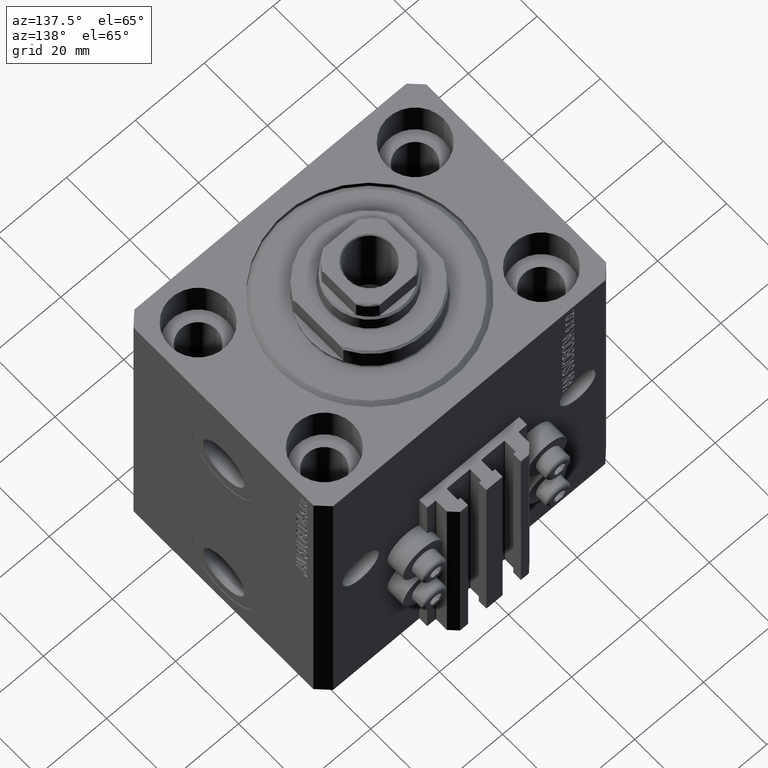
[diagram: clean part render]
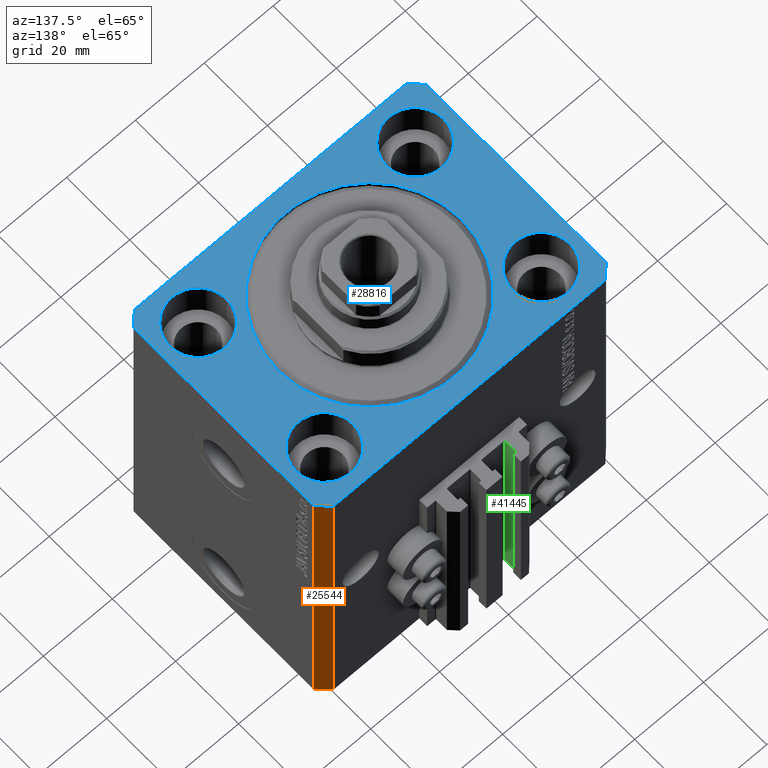
[diagram: same view with three faces highlighted in distinct colors, each labeled with its STEP entity id]
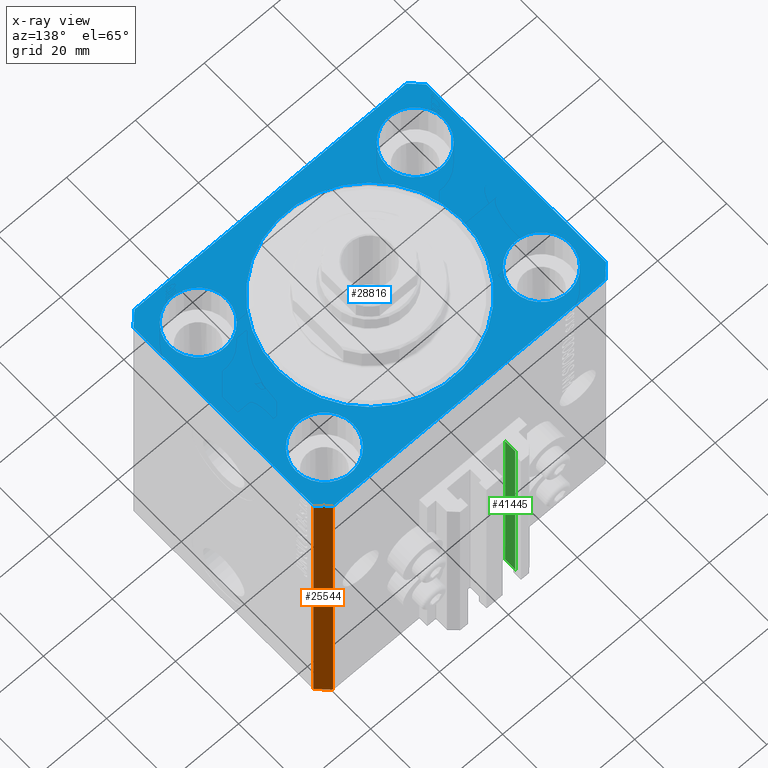
[diagram: x-ray of the same camera — body ghosted, the three highlighted faces saturated]
A machine part, auxiliary view with three faces highlighted in distinct colors.
The next image is the same camera in x-ray (body ghosted, the three faces saturated) — at least one of them is partly hidden behind the body in this view.
Their STEP definitions:

[orange] entity #25544 — the highlighted planar face has unit normal (0.7071, 0.7071, 0).
#307 = DIRECTION ( 'NONE',  ( -0.7071067811865356934, 0.7071067811865594521, 0.000000000000000000 ) ) ;
#681 = CARTESIAN_POINT ( 'NONE',  ( 39.50000000000056843, 31.50000000000000000, -93.00000000000000000 ) ) ;
#966 = ORIENTED_EDGE ( 'NONE', *, *, #42200, .T. ) ;
#1966 = CARTESIAN_POINT ( 'NONE',  ( 39.50000000000056843, 31.50000000000000000, -93.00000000000000000 ) ) ;
#2265 = VECTOR ( 'NONE', #307, 1000.000000000000114 ) ;
#2620 = PLANE ( 'NONE',  #23882 ) ;
#4164 = DIRECTION ( 'NONE',  ( 0.000000000000000000, 0.000000000000000000, 1.000000000000000000 ) ) ;
#4252 = EDGE_CURVE ( 'NONE', #35691, #47749, #42347, .T. ) ;
#4472 = VERTEX_POINT ( 'NONE', #4839 ) ;
#4839 = CARTESIAN_POINT ( 'NONE',  ( 42.50000000000051870, 28.49999999999995381, 0.000000000000000000 ) ) ;
#6269 = CARTESIAN_POINT ( 'NONE',  ( 42.50000000000051870, 28.49999999999995381, -93.00000000000000000 ) ) ;
#10393 = DIRECTION ( 'NONE',  ( -0.7071067811865355823, 0.7071067811865594521, 0.000000000000000000 ) ) ;
#13445 = VECTOR ( 'NONE', #47597, 1000.000000000000114 ) ;
#14075 = VECTOR ( 'NONE', #4164, 1000.000000000000000 ) ;
#16832 = CARTESIAN_POINT ( 'NONE',  ( 42.50000000000051870, 28.49999999999995381, -93.00000000000000000 ) ) ;
#18166 = CARTESIAN_POINT ( 'NONE',  ( 42.50000000000051870, 28.49999999999995381, 0.000000000000000000 ) ) ;
#18712 = ORIENTED_EDGE ( 'NONE', *, *, #4252, .T. ) ;
#19886 = VECTOR ( 'NONE', #20213, 1000.000000000000000 ) ;
#20213 = DIRECTION ( 'NONE',  ( 0.000000000000000000, 0.000000000000000000, 1.000000000000000000 ) ) ;
#23882 = AXIS2_PLACEMENT_3D ( 'NONE', #6269, #47367, #10393 ) ;
#24897 = LINE ( 'NONE', #28787, #2265 ) ;
#25544 = ADVANCED_FACE ( 'NONE', ( #48095 ), #2620, .T. ) ;
#27269 = LINE ( 'NONE', #30188, #14075 ) ;
#28787 = CARTESIAN_POINT ( 'NONE',  ( 42.50000000000051870, 28.49999999999995381, -93.00000000000000000 ) ) ;
#29396 = ORIENTED_EDGE ( 'NONE', *, *, #39265, .F. ) ;
#30188 = CARTESIAN_POINT ( 'NONE',  ( 42.50000000000051870, 28.49999999999995381, -93.00000000000000000 ) ) ;
#32580 = ORIENTED_EDGE ( 'NONE', *, *, #37697, .F. ) ;
#35691 = VERTEX_POINT ( 'NONE', #681 ) ;
#36390 = CARTESIAN_POINT ( 'NONE',  ( 39.50000000000056843, 31.50000000000000000, 0.000000000000000000 ) ) ;
#37697 = EDGE_CURVE ( 'NONE', #43287, #4472, #27269, .T. ) ;
#39265 = EDGE_CURVE ( 'NONE', #4472, #47749, #47362, .T. ) ;
#42200 = EDGE_CURVE ( 'NONE', #43287, #35691, #24897, .T. ) ;
#42347 = LINE ( 'NONE', #1966, #19886 ) ;
#43287 = VERTEX_POINT ( 'NONE', #16832 ) ;
#46767 = EDGE_LOOP ( 'NONE', ( #29396, #32580, #966, #18712 ) ) ;
#47362 = LINE ( 'NONE', #18166, #13445 ) ;
#47367 = DIRECTION ( 'NONE',  ( 0.7071067811865594521, 0.7071067811865355823, -0.000000000000000000 ) ) ;
#47597 = DIRECTION ( 'NONE',  ( -0.7071067811865356934, 0.7071067811865594521, 0.000000000000000000 ) ) ;
#47749 = VERTEX_POINT ( 'NONE', #36390 ) ;
#48095 = FACE_OUTER_BOUND ( 'NONE', #46767, .T. ) ;

[blue] entity #28816 — the highlighted planar face has unit normal (0, 0, 1).
#794 = CARTESIAN_POINT ( 'NONE',  ( 31.50000000000000000, 20.00000000000001066, 0.000000000000000000 ) ) ;
#878 = AXIS2_PLACEMENT_3D ( 'NONE', #41175, #45060, #37522 ) ;
#1510 = LINE ( 'NONE', #8335, #18989 ) ;
#1704 = CARTESIAN_POINT ( 'NONE',  ( 39.50000000000056843, 31.50000000000000000, 0.000000000000000000 ) ) ;
#1715 = FACE_OUTER_BOUND ( 'NONE', #20165, .T. ) ;
#1845 = VERTEX_POINT ( 'NONE', #40523 ) ;
#1971 = CIRCLE ( 'NONE', #12849, 8.249999999999992895 ) ;
#2272 = EDGE_CURVE ( 'NONE', #16471, #37252, #1971, .T. ) ;
#2648 = CARTESIAN_POINT ( 'NONE',  ( -26.50000000000000355, 3.245314017740486554E-15, 0.000000000000000000 ) ) ;
#2930 = VECTOR ( 'NONE', #27643, 1000.000000000000000 ) ;
#2993 = CIRCLE ( 'NONE', #5378, 8.250000000000000000 ) ;
#3244 = VERTEX_POINT ( 'NONE', #11405 ) ;
#3456 = CARTESIAN_POINT ( 'NONE',  ( 0.000000000000000000, 0.000000000000000000, 0.000000000000000000 ) ) ;
#3540 = ORIENTED_EDGE ( 'NONE', *, *, #22415, .F. ) ;
#3733 = CARTESIAN_POINT ( 'NONE',  ( 39.74999999999999289, -20.00000000000000000, 0.000000000000000000 ) ) ;
#3947 = DIRECTION ( 'NONE',  ( 0.000000000000000000, 0.000000000000000000, 1.000000000000000000 ) ) ;
#4472 = VERTEX_POINT ( 'NONE', #4839 ) ;
#4839 = CARTESIAN_POINT ( 'NONE',  ( 42.50000000000051870, 28.49999999999995381, 0.000000000000000000 ) ) ;
#5360 = FACE_BOUND ( 'NONE', #9563, .T. ) ;
#5378 = AXIS2_PLACEMENT_3D ( 'NONE', #13266, #12550, #20548 ) ;
#5530 = VECTOR ( 'NONE', #38026, 1000.000000000000000 ) ;
#5715 = VERTEX_POINT ( 'NONE', #2648 ) ;
#6080 = AXIS2_PLACEMENT_3D ( 'NONE', #3456, #3947, #34097 ) ;
#6383 = CARTESIAN_POINT ( 'NONE',  ( 26.50000000000000355, 0.000000000000000000, 0.000000000000000000 ) ) ;
#6647 = ORIENTED_EDGE ( 'NONE', *, *, #2272, .F. ) ;
#6699 = EDGE_CURVE ( 'NONE', #45555, #38279, #44805, .T. ) ;
#6824 = CARTESIAN_POINT ( 'NONE',  ( -39.75000000000000000, 20.00000000000000000, 0.000000000000000000 ) ) ;
#8335 = CARTESIAN_POINT ( 'NONE',  ( -39.50000000000000711, 31.50000000000000000, 0.000000000000000000 ) ) ;
#8440 = DIRECTION ( 'NONE',  ( 1.000000000000000000, 0.000000000000000000, 0.000000000000000000 ) ) ;
#8563 = EDGE_CURVE ( 'NONE', #37063, #44636, #15981, .T. ) ;
#8579 = DIRECTION ( 'NONE',  ( 0.000000000000000000, 0.000000000000000000, 1.000000000000000000 ) ) ;
#8817 = CARTESIAN_POINT ( 'NONE',  ( 42.50000000000000711, -28.50000000000000355, 0.000000000000000000 ) ) ;
#8844 = CARTESIAN_POINT ( 'NONE',  ( 39.50000000000000711, -31.50000000000000000, 0.000000000000000000 ) ) ;
#9563 = EDGE_LOOP ( 'NONE', ( #32282, #17864 ) ) ;
#10324 = CARTESIAN_POINT ( 'NONE',  ( -42.50000000000000000, -28.50000000000000000, 0.000000000000000000 ) ) ;
#10615 = DIRECTION ( 'NONE',  ( 1.000000000000000000, 0.000000000000000000, 0.000000000000000000 ) ) ;
#10659 = CARTESIAN_POINT ( 'NONE',  ( 31.50000000000000000, -20.00000000000000000, 0.000000000000000000 ) ) ;
#10861 = CARTESIAN_POINT ( 'NONE',  ( -31.50000000000000000, -20.00000000000000000, 0.000000000000000000 ) ) ;
#11021 = DIRECTION ( 'NONE',  ( 1.000000000000000000, 0.000000000000000000, 0.000000000000000000 ) ) ;
#11055 = EDGE_CURVE ( 'NONE', #47749, #3244, #35013, .T. ) ;
#11129 = ORIENTED_EDGE ( 'NONE', *, *, #30163, .T. ) ;
#11405 = CARTESIAN_POINT ( 'NONE',  ( -39.50000000000000711, 31.50000000000000000, 0.000000000000000000 ) ) ;
#11437 = EDGE_CURVE ( 'NONE', #27988, #36519, #2993, .T. ) ;
#12435 = EDGE_LOOP ( 'NONE', ( #19139, #21555 ) ) ;
#12474 = DIRECTION ( 'NONE',  ( -0.7071067811865471286, -0.7071067811865479058, 0.000000000000000000 ) ) ;
#12550 = DIRECTION ( 'NONE',  ( 0.000000000000000000, 0.000000000000000000, 1.000000000000000000 ) ) ;
#12849 = AXIS2_PLACEMENT_3D ( 'NONE', #10659, #28920, #21374 ) ;
#12904 = PLANE ( 'NONE',  #42619 ) ;
#13165 = VECTOR ( 'NONE', #46303, 1000.000000000000000 ) ;
#13256 = VECTOR ( 'NONE', #29575, 1000.000000000000000 ) ;
#13266 = CARTESIAN_POINT ( 'NONE',  ( -31.50000000000000000, 20.00000000000000000, 0.000000000000000000 ) ) ;
#13301 = AXIS2_PLACEMENT_3D ( 'NONE', #44671, #41748, #8440 ) ;
#13321 = CIRCLE ( 'NONE', #878, 8.249999999999992895 ) ;
#13445 = VECTOR ( 'NONE', #47597, 1000.000000000000114 ) ;
#13754 = ORIENTED_EDGE ( 'NONE', *, *, #8563, .T. ) ;
#14723 = CIRCLE ( 'NONE', #47360, 26.50000000000000355 ) ;
#15462 = EDGE_CURVE ( 'NONE', #3244, #39622, #1510, .T. ) ;
#15981 = LINE ( 'NONE', #34926, #2930 ) ;
#16235 = EDGE_CURVE ( 'NONE', #36519, #27988, #16699, .T. ) ;
#16471 = VERTEX_POINT ( 'NONE', #46972 ) ;
#16699 = CIRCLE ( 'NONE', #22102, 8.250000000000000000 ) ;
#16904 = CIRCLE ( 'NONE', #40177, 8.249999999999992895 ) ;
#17864 = ORIENTED_EDGE ( 'NONE', *, *, #6699, .F. ) ;
#17957 = VECTOR ( 'NONE', #23938, 1000.000000000000000 ) ;
#18166 = CARTESIAN_POINT ( 'NONE',  ( 42.50000000000051870, 28.49999999999995381, 0.000000000000000000 ) ) ;
#18989 = VECTOR ( 'NONE', #12474, 1000.000000000000000 ) ;
#19139 = ORIENTED_EDGE ( 'NONE', *, *, #40657, .F. ) ;
#19346 = ORIENTED_EDGE ( 'NONE', *, *, #38237, .T. ) ;
#19602 = ORIENTED_EDGE ( 'NONE', *, *, #35877, .T. ) ;
#19804 = CARTESIAN_POINT ( 'NONE',  ( -42.50000000000000000, 28.50000000000000000, 0.000000000000000000 ) ) ;
#20165 = EDGE_LOOP ( 'NONE', ( #25744, #36884, #11129, #13754, #19602, #19346, #45856, #34411 ) ) ;
#20195 = FACE_BOUND ( 'NONE', #12435, .T. ) ;
#20282 = EDGE_CURVE ( 'NONE', #37252, #16471, #44772, .T. ) ;
#20548 = DIRECTION ( 'NONE',  ( 1.000000000000000000, 0.000000000000000000, 0.000000000000000000 ) ) ;
#21374 = DIRECTION ( 'NONE',  ( 1.000000000000000000, 0.000000000000000000, 0.000000000000000000 ) ) ;
#21382 = DIRECTION ( 'NONE',  ( 1.000000000000000000, 0.000000000000000000, -0.000000000000000000 ) ) ;
#21520 = CARTESIAN_POINT ( 'NONE',  ( -42.50000000000000000, 28.50000000000000000, 0.000000000000000000 ) ) ;
#21555 = ORIENTED_EDGE ( 'NONE', *, *, #43306, .F. ) ;
#21868 = ORIENTED_EDGE ( 'NONE', *, *, #46383, .F. ) ;
#21901 = DIRECTION ( 'NONE',  ( 0.000000000000000000, 0.000000000000000000, 1.000000000000000000 ) ) ;
#22102 = AXIS2_PLACEMENT_3D ( 'NONE', #34112, #44817, #11021 ) ;
#22174 = EDGE_LOOP ( 'NONE', ( #33700, #6647 ) ) ;
#22372 = VERTEX_POINT ( 'NONE', #8817 ) ;
#22415 = EDGE_CURVE ( 'NONE', #26544, #30157, #16904, .T. ) ;
#23286 = CARTESIAN_POINT ( 'NONE',  ( -39.50000000000000711, -31.50000000000000000, 0.000000000000000000 ) ) ;
#23700 = LINE ( 'NONE', #28070, #17957 ) ;
#23769 = CARTESIAN_POINT ( 'NONE',  ( 31.50000000000000000, -20.00000000000000000, 0.000000000000000000 ) ) ;
#23849 = FACE_BOUND ( 'NONE', #24326, .T. ) ;
#23938 = DIRECTION ( 'NONE',  ( 8.886653596232072440E-15, 1.000000000000000000, 0.000000000000000000 ) ) ;
#24326 = EDGE_LOOP ( 'NONE', ( #21868, #3540 ) ) ;
#24780 = CARTESIAN_POINT ( 'NONE',  ( -39.75000000000000000, -20.00000000000000000, 0.000000000000000000 ) ) ;
#24799 = VERTEX_POINT ( 'NONE', #6383 ) ;
#25328 = EDGE_LOOP ( 'NONE', ( #41310, #28825 ) ) ;
#25673 = LINE ( 'NONE', #40505, #13256 ) ;
#25744 = ORIENTED_EDGE ( 'NONE', *, *, #11055, .T. ) ;
#25990 = CARTESIAN_POINT ( 'NONE',  ( 0.000000000000000000, 0.000000000000000000, 0.000000000000000000 ) ) ;
#26544 = VERTEX_POINT ( 'NONE', #27642 ) ;
#27059 = CIRCLE ( 'NONE', #6080, 26.50000000000000355 ) ;
#27642 = CARTESIAN_POINT ( 'NONE',  ( 23.25000000000000355, 20.00000000000001066, 0.000000000000000000 ) ) ;
#27643 = DIRECTION ( 'NONE',  ( 0.7071067811865471286, -0.7071067811865479058, 0.000000000000000000 ) ) ;
#27988 = VERTEX_POINT ( 'NONE', #29152 ) ;
#28070 = CARTESIAN_POINT ( 'NONE',  ( 42.50000000000000711, -28.50000000000000355, 0.000000000000000000 ) ) ;
#28816 = ADVANCED_FACE ( 'NONE', ( #5360, #31145, #23849, #38675, #20195, #1715 ), #12904, .T. ) ;
#28825 = ORIENTED_EDGE ( 'NONE', *, *, #16235, .F. ) ;
#28920 = DIRECTION ( 'NONE',  ( 0.000000000000000000, 0.000000000000000000, 1.000000000000000000 ) ) ;
#29152 = CARTESIAN_POINT ( 'NONE',  ( -23.25000000000000000, 20.00000000000000000, 0.000000000000000000 ) ) ;
#29575 = DIRECTION ( 'NONE',  ( 1.000000000000000000, 0.000000000000000000, 0.000000000000000000 ) ) ;
#29605 = CIRCLE ( 'NONE', #13301, 8.250000000000000000 ) ;
#30157 = VERTEX_POINT ( 'NONE', #38284 ) ;
#30163 = EDGE_CURVE ( 'NONE', #39622, #37063, #31467, .T. ) ;
#31145 = FACE_BOUND ( 'NONE', #22174, .T. ) ;
#31467 = LINE ( 'NONE', #19804, #13165 ) ;
#32282 = ORIENTED_EDGE ( 'NONE', *, *, #33999, .F. ) ;
#32367 = AXIS2_PLACEMENT_3D ( 'NONE', #10861, #47585, #10615 ) ;
#33068 = DIRECTION ( 'NONE',  ( 1.000000000000000000, 0.000000000000000000, 0.000000000000000000 ) ) ;
#33700 = ORIENTED_EDGE ( 'NONE', *, *, #20282, .F. ) ;
#33999 = EDGE_CURVE ( 'NONE', #38279, #45555, #29605, .T. ) ;
#34097 = DIRECTION ( 'NONE',  ( 1.000000000000000000, 0.000000000000000000, 0.000000000000000000 ) ) ;
#34112 = CARTESIAN_POINT ( 'NONE',  ( -31.50000000000000000, 20.00000000000000000, 0.000000000000000000 ) ) ;
#34139 = CARTESIAN_POINT ( 'NONE',  ( -23.25000000000000000, -20.00000000000000000, 0.000000000000000000 ) ) ;
#34411 = ORIENTED_EDGE ( 'NONE', *, *, #39265, .T. ) ;
#34926 = CARTESIAN_POINT ( 'NONE',  ( -42.50000000000000000, -28.50000000000000000, 0.000000000000000000 ) ) ;
#35013 = LINE ( 'NONE', #1704, #40275 ) ;
#35321 = EDGE_CURVE ( 'NONE', #22372, #4472, #23700, .T. ) ;
#35877 = EDGE_CURVE ( 'NONE', #44636, #1845, #25673, .T. ) ;
#36390 = CARTESIAN_POINT ( 'NONE',  ( 39.50000000000056843, 31.50000000000000000, 0.000000000000000000 ) ) ;
#36519 = VERTEX_POINT ( 'NONE', #6824 ) ;
#36884 = ORIENTED_EDGE ( 'NONE', *, *, #15462, .T. ) ;
#37063 = VERTEX_POINT ( 'NONE', #10324 ) ;
#37252 = VERTEX_POINT ( 'NONE', #3733 ) ;
#37522 = DIRECTION ( 'NONE',  ( 1.000000000000000000, 0.000000000000000000, 0.000000000000000000 ) ) ;
#38026 = DIRECTION ( 'NONE',  ( 0.7071067811865483499, 0.7071067811865466846, 0.000000000000000000 ) ) ;
#38237 = EDGE_CURVE ( 'NONE', #1845, #22372, #41924, .T. ) ;
#38279 = VERTEX_POINT ( 'NONE', #34139 ) ;
#38284 = CARTESIAN_POINT ( 'NONE',  ( 39.74999999999999289, 20.00000000000001066, 0.000000000000000000 ) ) ;
#38596 = DIRECTION ( 'NONE',  ( 1.000000000000000000, 0.000000000000000000, 0.000000000000000000 ) ) ;
#38675 = FACE_BOUND ( 'NONE', #25328, .T. ) ;
#39265 = EDGE_CURVE ( 'NONE', #4472, #47749, #47362, .T. ) ;
#39622 = VERTEX_POINT ( 'NONE', #21520 ) ;
#40177 = AXIS2_PLACEMENT_3D ( 'NONE', #794, #8579, #46022 ) ;
#40275 = VECTOR ( 'NONE', #47394, 1000.000000000000000 ) ;
#40505 = CARTESIAN_POINT ( 'NONE',  ( -39.50000000000000711, -31.50000000000000000, 0.000000000000000000 ) ) ;
#40523 = CARTESIAN_POINT ( 'NONE',  ( 39.50000000000000711, -31.50000000000000000, 0.000000000000000000 ) ) ;
#40657 = EDGE_CURVE ( 'NONE', #24799, #5715, #27059, .T. ) ;
#40864 = CARTESIAN_POINT ( 'NONE',  ( 0.000000000000000000, 0.000000000000000000, 0.000000000000000000 ) ) ;
#41175 = CARTESIAN_POINT ( 'NONE',  ( 31.50000000000000000, 20.00000000000001066, 0.000000000000000000 ) ) ;
#41310 = ORIENTED_EDGE ( 'NONE', *, *, #11437, .F. ) ;
#41649 = AXIS2_PLACEMENT_3D ( 'NONE', #23769, #41769, #38596 ) ;
#41748 = DIRECTION ( 'NONE',  ( 0.000000000000000000, 0.000000000000000000, 1.000000000000000000 ) ) ;
#41769 = DIRECTION ( 'NONE',  ( 0.000000000000000000, 0.000000000000000000, 1.000000000000000000 ) ) ;
#41924 = LINE ( 'NONE', #8844, #5530 ) ;
#42619 = AXIS2_PLACEMENT_3D ( 'NONE', #25990, #43983, #21382 ) ;
#43306 = EDGE_CURVE ( 'NONE', #5715, #24799, #14723, .T. ) ;
#43983 = DIRECTION ( 'NONE',  ( 0.000000000000000000, 0.000000000000000000, 1.000000000000000000 ) ) ;
#44636 = VERTEX_POINT ( 'NONE', #23286 ) ;
#44671 = CARTESIAN_POINT ( 'NONE',  ( -31.50000000000000000, -20.00000000000000000, 0.000000000000000000 ) ) ;
#44772 = CIRCLE ( 'NONE', #41649, 8.249999999999992895 ) ;
#44805 = CIRCLE ( 'NONE', #32367, 8.250000000000000000 ) ;
#44817 = DIRECTION ( 'NONE',  ( 0.000000000000000000, 0.000000000000000000, 1.000000000000000000 ) ) ;
#45060 = DIRECTION ( 'NONE',  ( 0.000000000000000000, 0.000000000000000000, 1.000000000000000000 ) ) ;
#45555 = VERTEX_POINT ( 'NONE', #24780 ) ;
#45856 = ORIENTED_EDGE ( 'NONE', *, *, #35321, .T. ) ;
#46022 = DIRECTION ( 'NONE',  ( 1.000000000000000000, 0.000000000000000000, 0.000000000000000000 ) ) ;
#46303 = DIRECTION ( 'NONE',  ( 0.000000000000000000, -1.000000000000000000, 0.000000000000000000 ) ) ;
#46383 = EDGE_CURVE ( 'NONE', #30157, #26544, #13321, .T. ) ;
#46972 = CARTESIAN_POINT ( 'NONE',  ( 23.25000000000000355, -20.00000000000000000, 0.000000000000000000 ) ) ;
#47360 = AXIS2_PLACEMENT_3D ( 'NONE', #40864, #21901, #33068 ) ;
#47362 = LINE ( 'NONE', #18166, #13445 ) ;
#47394 = DIRECTION ( 'NONE',  ( -1.000000000000000000, 0.000000000000000000, 0.000000000000000000 ) ) ;
#47585 = DIRECTION ( 'NONE',  ( 0.000000000000000000, 0.000000000000000000, 1.000000000000000000 ) ) ;
#47597 = DIRECTION ( 'NONE',  ( -0.7071067811865356934, 0.7071067811865594521, 0.000000000000000000 ) ) ;
#47749 = VERTEX_POINT ( 'NONE', #36390 ) ;

[green] entity #41445 — the highlighted planar face has unit normal (1, 0, 0).
#1469 = AXIS2_PLACEMENT_3D ( 'NONE', #3098, #14061, #25239 ) ;
#1531 = ORIENTED_EDGE ( 'NONE', *, *, #16123, .F. ) ;
#2015 = LINE ( 'NONE', #46047, #13906 ) ;
#3098 = CARTESIAN_POINT ( 'NONE',  ( -8.399999999999996803, 33.70000000000000284, -93.00000000000000000 ) ) ;
#5185 = DIRECTION ( 'NONE',  ( -1.084202172485506406E-15, 1.000000000000000000, 0.000000000000000000 ) ) ;
#6988 = ORIENTED_EDGE ( 'NONE', *, *, #39719, .T. ) ;
#7645 = VERTEX_POINT ( 'NONE', #18294 ) ;
#9676 = VECTOR ( 'NONE', #17599, 1000.000000000000000 ) ;
#9821 = LINE ( 'NONE', #32891, #9676 ) ;
#13823 = PLANE ( 'NONE',  #1469 ) ;
#13906 = VECTOR ( 'NONE', #5185, 1000.000000000000000 ) ;
#14061 = DIRECTION ( 'NONE',  ( 1.000000000000000000, 1.084202172485506406E-15, -0.000000000000000000 ) ) ;
#15004 = VERTEX_POINT ( 'NONE', #22614 ) ;
#15393 = CARTESIAN_POINT ( 'NONE',  ( -8.399999999999996803, 33.70000000000000284, -93.00000000000000000 ) ) ;
#16123 = EDGE_CURVE ( 'NONE', #19503, #15004, #9821, .T. ) ;
#17201 = EDGE_LOOP ( 'NONE', ( #20680, #1531, #6988, #30445 ) ) ;
#17599 = DIRECTION ( 'NONE',  ( 0.000000000000000000, 0.000000000000000000, 1.000000000000000000 ) ) ;
#18294 = CARTESIAN_POINT ( 'NONE',  ( -8.400000000000000355, 36.89999999999999858, -93.00000000000000000 ) ) ;
#19503 = VERTEX_POINT ( 'NONE', #15393 ) ;
#20272 = CARTESIAN_POINT ( 'NONE',  ( -8.400000000000000355, 36.89999999999999858, -93.00000000000000000 ) ) ;
#20680 = ORIENTED_EDGE ( 'NONE', *, *, #29833, .F. ) ;
#20882 = FACE_OUTER_BOUND ( 'NONE', #17201, .T. ) ;
#20985 = LINE ( 'NONE', #20272, #37018 ) ;
#22614 = CARTESIAN_POINT ( 'NONE',  ( -8.399999999999996803, 33.70000000000000284, -33.00000000000000000 ) ) ;
#24841 = EDGE_CURVE ( 'NONE', #7645, #35030, #20985, .T. ) ;
#25239 = DIRECTION ( 'NONE',  ( -1.084202172485506406E-15, 1.000000000000000000, 0.000000000000000000 ) ) ;
#29833 = EDGE_CURVE ( 'NONE', #15004, #35030, #2015, .T. ) ;
#30445 = ORIENTED_EDGE ( 'NONE', *, *, #24841, .T. ) ;
#31586 = CARTESIAN_POINT ( 'NONE',  ( -8.400000000000000355, 36.89999999999999858, -33.00000000000000000 ) ) ;
#32891 = CARTESIAN_POINT ( 'NONE',  ( -8.399999999999996803, 33.70000000000000284, -93.00000000000000000 ) ) ;
#35030 = VERTEX_POINT ( 'NONE', #31586 ) ;
#35809 = DIRECTION ( 'NONE',  ( 0.000000000000000000, 0.000000000000000000, 1.000000000000000000 ) ) ;
#37018 = VECTOR ( 'NONE', #35809, 1000.000000000000000 ) ;
#38280 = CARTESIAN_POINT ( 'NONE',  ( -8.399999999999996803, 33.70000000000000284, -93.00000000000000000 ) ) ;
#38287 = VECTOR ( 'NONE', #45572, 1000.000000000000000 ) ;
#39719 = EDGE_CURVE ( 'NONE', #19503, #7645, #42177, .T. ) ;
#41445 = ADVANCED_FACE ( 'NONE', ( #20882 ), #13823, .T. ) ;
#42177 = LINE ( 'NONE', #38280, #38287 ) ;
#45572 = DIRECTION ( 'NONE',  ( -1.084202172485506406E-15, 1.000000000000000000, 0.000000000000000000 ) ) ;
#46047 = CARTESIAN_POINT ( 'NONE',  ( -8.399999999999996803, 33.70000000000000284, -33.00000000000000000 ) ) ;